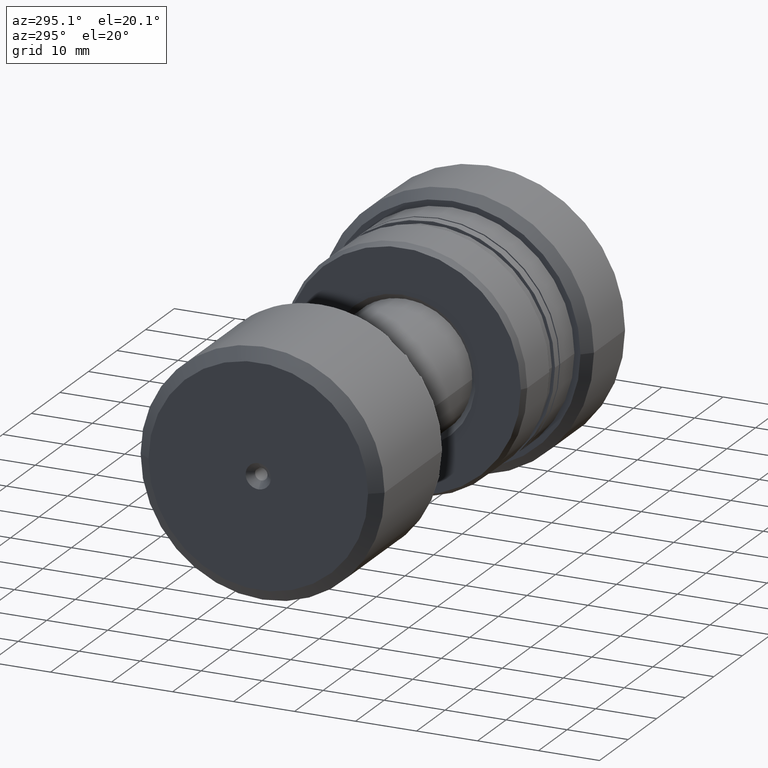
[diagram: clean part render]
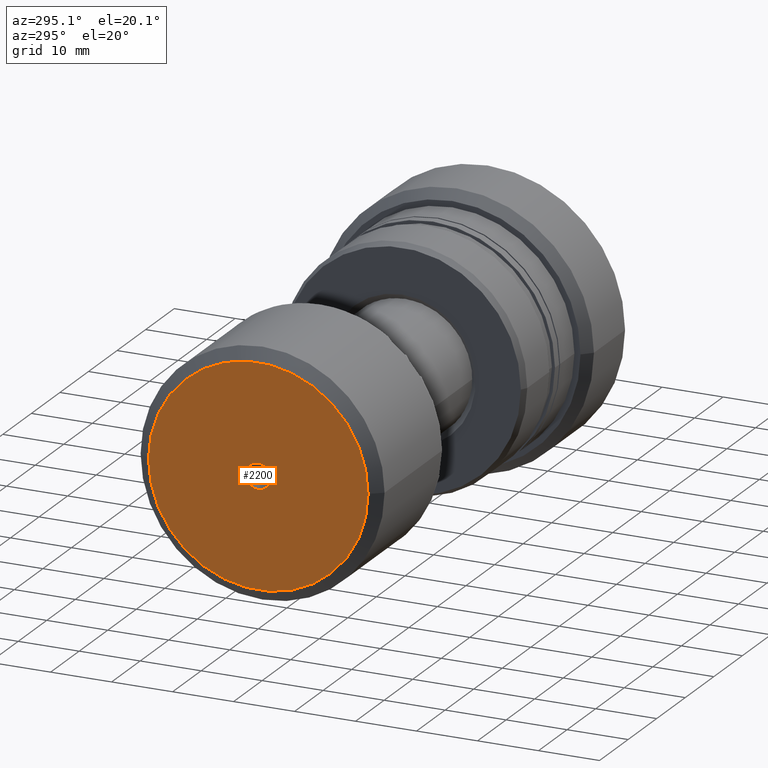
[diagram: same view with one face highlighted and labeled with its STEP entity id]
A machine part, auxiliary view. The second image highlights one B-rep face of the part: STEP entity #2200.
In plain terms, the highlighted planar face has unit normal (-1, -0, 0).
Its self-contained STEP definition (entity closure, byte-faithful):
#54 = AXIS2_PLACEMENT_3D ( 'NONE', #993, #139, #709 ) ;
#64 = CARTESIAN_POINT ( 'NONE',  ( 1.005923310246402065E-15, 0.000000000000000000, 2.074999999999993516 ) ) ;
#89 = AXIS2_PLACEMENT_3D ( 'NONE', #457, #1220, #649 ) ;
#96 = CIRCLE ( 'NONE', #1052, 18.00000000000000355 ) ;
#108 = ORIENTED_EDGE ( 'NONE', *, *, #433, .T. ) ;
#118 = VERTEX_POINT ( 'NONE', #1932 ) ;
#139 = DIRECTION ( 'NONE',  ( 1.000000000000000000, 1.069542322069065801E-17, 0.000000000000000000 ) ) ;
#208 = CIRCLE ( 'NONE', #54, 2.074999999999993516 ) ;
#232 = DIRECTION ( 'NONE',  ( -1.000000000000000000, -1.069542322069065801E-17, 0.000000000000000000 ) ) ;
#238 = VERTEX_POINT ( 'NONE', #64 ) ;
#280 = DIRECTION ( 'NONE',  ( 1.069542322069065801E-17, -1.000000000000000000, 0.000000000000000000 ) ) ;
#393 = EDGE_CURVE ( 'NONE', #2276, #2393, #96, .T. ) ;
#399 = CARTESIAN_POINT ( 'NONE',  ( 1.819329002520372041E-15, 18.00000000000000355, 0.000000000000000000 ) ) ;
#433 = EDGE_CURVE ( 'NONE', #2393, #2276, #1251, .T. ) ;
#457 = CARTESIAN_POINT ( 'NONE',  ( 1.005923310246402065E-15, 0.000000000000000000, 0.000000000000000000 ) ) ;
#562 = DIRECTION ( 'NONE',  ( -1.000000000000000000, -1.069542322069065801E-17, -0.000000000000000000 ) ) ;
#649 = DIRECTION ( 'NONE',  ( 1.069542322069068574E-17, -1.000000000000000000, 0.000000000000000000 ) ) ;
#709 = DIRECTION ( 'NONE',  ( 1.069542322069068574E-17, -1.000000000000000000, 0.000000000000000000 ) ) ;
#768 = ORIENTED_EDGE ( 'NONE', *, *, #2121, .T. ) ;
#807 = AXIS2_PLACEMENT_3D ( 'NONE', #1127, #562, #1330 ) ;
#993 = CARTESIAN_POINT ( 'NONE',  ( 1.005923310246402065E-15, 0.000000000000000000, 0.000000000000000000 ) ) ;
#1052 = AXIS2_PLACEMENT_3D ( 'NONE', #1227, #2194, #1980 ) ;
#1113 = ORIENTED_EDGE ( 'NONE', *, *, #1928, .T. ) ;
#1127 = CARTESIAN_POINT ( 'NONE',  ( 2.011846620492804129E-15, 2.151755106128676308E-32, 0.000000000000000000 ) ) ;
#1148 = FACE_BOUND ( 'NONE', #1419, .T. ) ;
#1190 = CARTESIAN_POINT ( 'NONE',  ( 1.005923310246402065E-15, 1.075877553064338154E-32, 0.000000000000000000 ) ) ;
#1220 = DIRECTION ( 'NONE',  ( 1.000000000000000000, 1.069542322069065801E-17, 0.000000000000000000 ) ) ;
#1227 = CARTESIAN_POINT ( 'NONE',  ( 2.011846620492804129E-15, 2.151755106128676308E-32, 0.000000000000000000 ) ) ;
#1251 = CIRCLE ( 'NONE', #807, 18.00000000000000355 ) ;
#1330 = DIRECTION ( 'NONE',  ( 1.069542322069065647E-17, -1.000000000000000000, 0.000000000000000000 ) ) ;
#1419 = EDGE_LOOP ( 'NONE', ( #1113, #768 ) ) ;
#1517 = CIRCLE ( 'NONE', #89, 2.074999999999993516 ) ;
#1828 = ORIENTED_EDGE ( 'NONE', *, *, #393, .T. ) ;
#1866 = AXIS2_PLACEMENT_3D ( 'NONE', #1190, #232, #280 ) ;
#1928 = EDGE_CURVE ( 'NONE', #238, #118, #208, .T. ) ;
#1932 = CARTESIAN_POINT ( 'NONE',  ( 1.005923310246402065E-15, 2.541142108230750183E-16, -2.074999999999993516 ) ) ;
#1980 = DIRECTION ( 'NONE',  ( 1.069542322069065647E-17, -1.000000000000000000, 0.000000000000000000 ) ) ;
#2100 = CARTESIAN_POINT ( 'NONE',  ( 2.204364238465235822E-15, -18.00000000000000355, 2.326828918379971365E-15 ) ) ;
#2121 = EDGE_CURVE ( 'NONE', #118, #238, #1517, .T. ) ;
#2194 = DIRECTION ( 'NONE',  ( -1.000000000000000000, -1.069542322069065801E-17, -0.000000000000000000 ) ) ;
#2200 = ADVANCED_FACE ( 'NONE', ( #1148, #2363 ), #2323, .T. ) ;
#2276 = VERTEX_POINT ( 'NONE', #399 ) ;
#2312 = EDGE_LOOP ( 'NONE', ( #1828, #108 ) ) ;
#2323 = PLANE ( 'NONE',  #1866 ) ;
#2363 = FACE_OUTER_BOUND ( 'NONE', #2312, .T. ) ;
#2393 = VERTEX_POINT ( 'NONE', #2100 ) ;